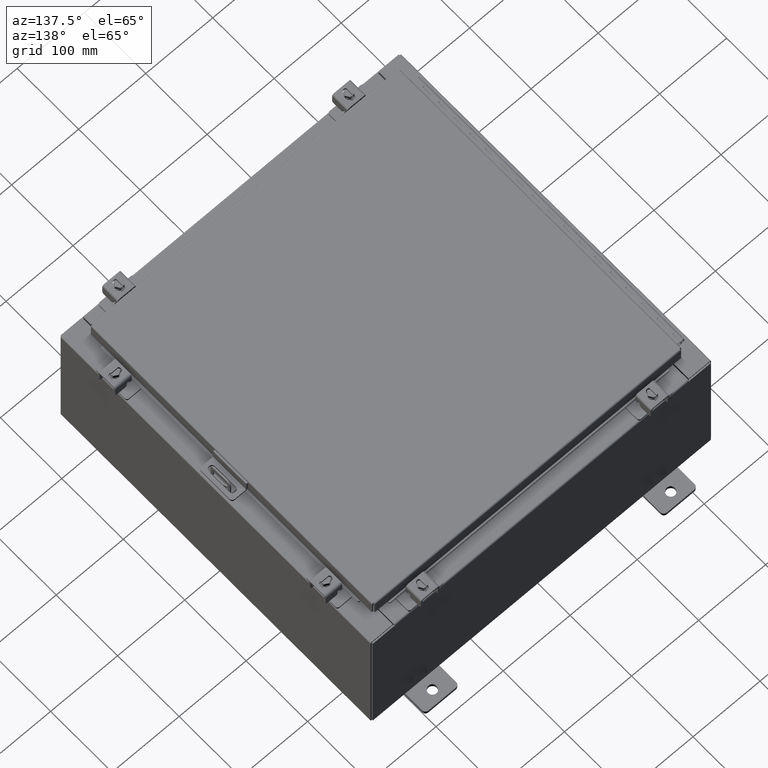
[diagram: clean part render]
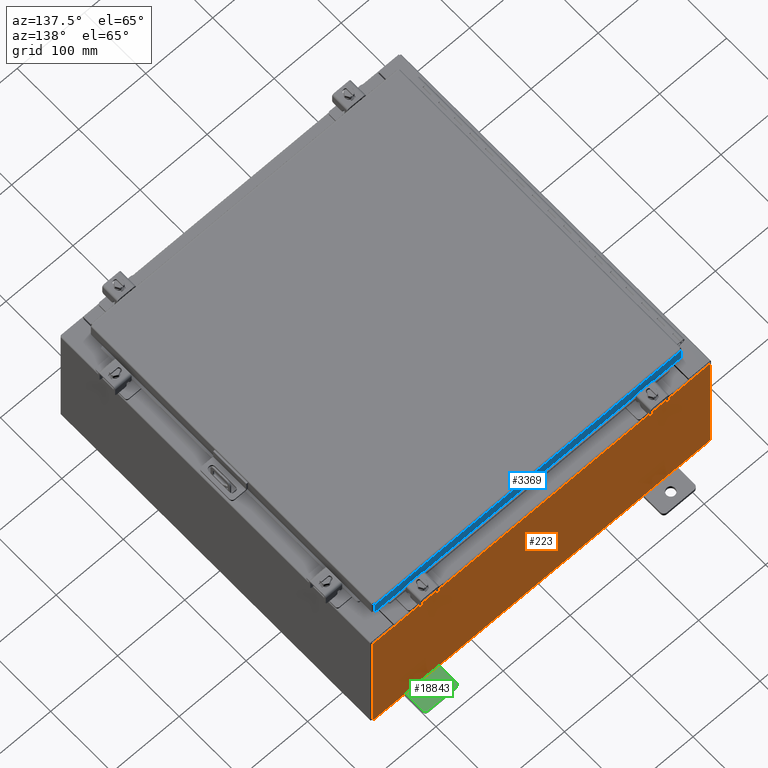
[diagram: same view with three faces highlighted in distinct colors, each labeled with its STEP entity id]
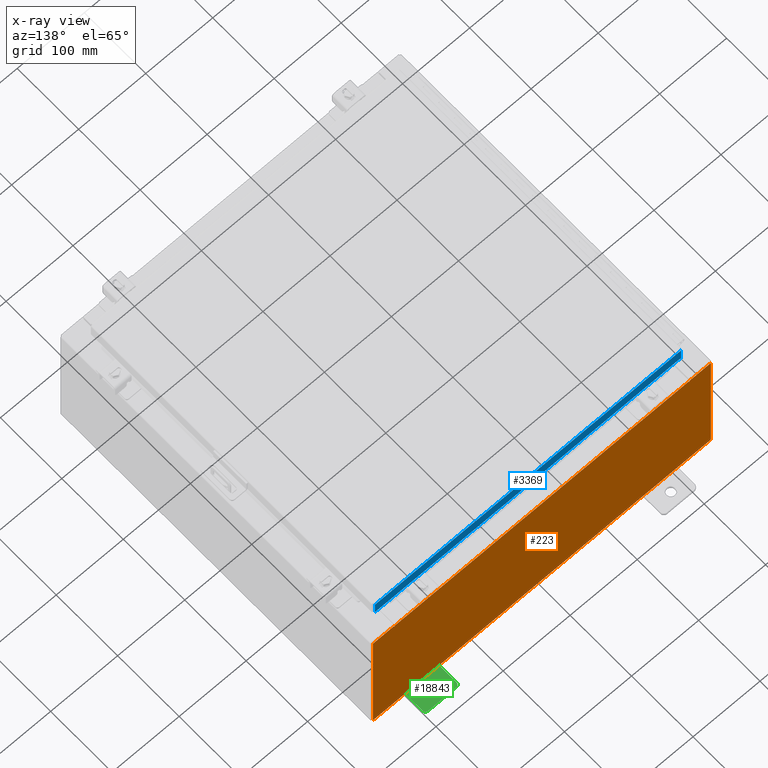
[diagram: x-ray of the same camera — body ghosted, the three highlighted faces saturated]
A machine part, auxiliary view with three faces highlighted in distinct colors.
The next image is the same camera in x-ray (body ghosted, the three faces saturated) — at least one of them is partly hidden behind the body in this view.
Their STEP definitions:

[orange] entity #223 — the highlighted planar face has unit normal (0, -1, 0).
#155 = VECTOR ( 'NONE', #18751, 39.37007874015748100 ) ;
#223 = ADVANCED_FACE ( 'NONE', ( #8480 ), #29188, .F. ) ;
#423 = ORIENTED_EDGE ( 'NONE', *, *, #13695, .T. ) ;
#445 = VECTOR ( 'NONE', #25773, 39.37007874015748100 ) ;
#549 = EDGE_LOOP ( 'NONE', ( #13789, #6925, #27679, #423, #16277, #18764, #25745, #837, #5865, #24125, #26299, #2747 ) ) ;
#837 = ORIENTED_EDGE ( 'NONE', *, *, #4699, .T. ) ;
#1571 = LINE ( 'NONE', #16478, #155 ) ;
#1827 = LINE ( 'NONE', #14611, #6461 ) ;
#2250 = LINE ( 'NONE', #15445, #8290 ) ;
#2747 = ORIENTED_EDGE ( 'NONE', *, *, #21229, .T. ) ;
#3086 = CARTESIAN_POINT ( 'NONE',  ( -8.637199999999996400, 1.024442997624098700E-016, 3.912299999999999700 ) ) ;
#3214 = VERTEX_POINT ( 'NONE', #3086 ) ;
#3218 = AXIS2_PLACEMENT_3D ( 'NONE', #13286, #21842, #14797 ) ;
#3475 = CARTESIAN_POINT ( 'NONE',  ( 8.637200000000000000, 0.0000000000000000000, 3.912299999999999700 ) ) ;
#4699 = EDGE_CURVE ( 'NONE', #22735, #11200, #25403, .T. ) ;
#4818 = CARTESIAN_POINT ( 'NONE',  ( 8.637200000000000000, 0.0000000000000000000, 3.874949999999999700 ) ) ;
#4938 = VERTEX_POINT ( 'NONE', #24771 ) ;
#5047 = DIRECTION ( 'NONE',  ( 0.0000000000000000000, 0.0000000000000000000, -1.000000000000000000 ) ) ;
#5865 = ORIENTED_EDGE ( 'NONE', *, *, #12851, .T. ) ;
#6461 = VECTOR ( 'NONE', #16879, 39.37007874015748100 ) ;
#6735 = VERTEX_POINT ( 'NONE', #8922 ) ;
#6899 = CARTESIAN_POINT ( 'NONE',  ( -8.655874999999996400, 0.0000000000000000000, 3.874949999999999700 ) ) ;
#6925 = ORIENTED_EDGE ( 'NONE', *, *, #14923, .F. ) ;
#7047 = AXIS2_PLACEMENT_3D ( 'NONE', #27223, #13625, #29522 ) ;
#7540 = VECTOR ( 'NONE', #18116, 39.37007874015748100 ) ;
#7727 = VECTOR ( 'NONE', #26538, 39.37007874015748100 ) ;
#8215 = LINE ( 'NONE', #13216, #14289 ) ;
#8239 = LINE ( 'NONE', #22707, #7540 ) ;
#8290 = VECTOR ( 'NONE', #20019, 39.37007874015748100 ) ;
#8480 = FACE_OUTER_BOUND ( 'NONE', #549, .T. ) ;
#8922 = CARTESIAN_POINT ( 'NONE',  ( -8.637199999999996400, -0.0000000000000000000, 3.874949999999999700 ) ) ;
#9011 = CIRCLE ( 'NONE', #22203, 0.01867500000000003900 ) ;
#9200 = DIRECTION ( 'NONE',  ( 0.0000000000000000000, 0.0000000000000000000, -1.000000000000000000 ) ) ;
#9842 = DIRECTION ( 'NONE',  ( 1.000000000000000000, 0.0000000000000000000, 0.0000000000000000000 ) ) ;
#10109 = EDGE_CURVE ( 'NONE', #12950, #24712, #18382, .T. ) ;
#10127 = CARTESIAN_POINT ( 'NONE',  ( 9.925300000000000000, 0.0000000000000000000, -3.925299999999999600 ) ) ;
#10326 = EDGE_CURVE ( 'NONE', #24257, #14989, #19440, .T. ) ;
#10653 = CARTESIAN_POINT ( 'NONE',  ( -9.925300000000000000, 0.0000000000000000000, -3.925299999999999600 ) ) ;
#11200 = VERTEX_POINT ( 'NONE', #19995 ) ;
#11536 = VECTOR ( 'NONE', #18460, 39.37007874015748100 ) ;
#12575 = LINE ( 'NONE', #23489, #445 ) ;
#12851 = EDGE_CURVE ( 'NONE', #11200, #12950, #1571, .T. ) ;
#12950 = VERTEX_POINT ( 'NONE', #10127 ) ;
#13216 = CARTESIAN_POINT ( 'NONE',  ( 8.637200000000000000, 0.0000000000000000000, 0.0000000000000000000 ) ) ;
#13286 = CARTESIAN_POINT ( 'NONE',  ( 0.0000000000000000000, 0.0000000000000000000, 0.0000000000000000000 ) ) ;
#13319 = VECTOR ( 'NONE', #9842, 39.37007874015748100 ) ;
#13343 = EDGE_CURVE ( 'NONE', #3214, #6735, #18282, .T. ) ;
#13625 = DIRECTION ( 'NONE',  ( -0.0000000000000000000, 1.000000000000000000, -0.0000000000000000000 ) ) ;
#13695 = EDGE_CURVE ( 'NONE', #3214, #22426, #2250, .T. ) ;
#13789 = ORIENTED_EDGE ( 'NONE', *, *, #19382, .F. ) ;
#14037 = EDGE_CURVE ( 'NONE', #22735, #24257, #12575, .T. ) ;
#14289 = VECTOR ( 'NONE', #24527, 39.37007874015748100 ) ;
#14611 = CARTESIAN_POINT ( 'NONE',  ( -9.925300000000000000, 0.0000000000000000000, 3.925299999999999600 ) ) ;
#14797 = DIRECTION ( 'NONE',  ( 0.0000000000000000000, -0.0000000000000000000, -1.000000000000000000 ) ) ;
#14923 = EDGE_CURVE ( 'NONE', #6735, #17699, #9011, .T. ) ;
#14989 = VERTEX_POINT ( 'NONE', #4818 ) ;
#15445 = CARTESIAN_POINT ( 'NONE',  ( -8.637200000000000000, 1.024442997624098700E-016, 3.912299999999999700 ) ) ;
#15923 = EDGE_CURVE ( 'NONE', #14989, #22426, #8215, .T. ) ;
#16277 = ORIENTED_EDGE ( 'NONE', *, *, #15923, .F. ) ;
#16478 = CARTESIAN_POINT ( 'NONE',  ( 9.925300000000000000, 0.0000000000000000000, 3.925299999999999600 ) ) ;
#16879 = DIRECTION ( 'NONE',  ( 1.000000000000000000, 0.0000000000000000000, 0.0000000000000000000 ) ) ;
#17560 = VECTOR ( 'NONE', #5047, 39.37007874015748100 ) ;
#17699 = VERTEX_POINT ( 'NONE', #25622 ) ;
#18116 = DIRECTION ( 'NONE',  ( -0.0000000000000000000, -0.0000000000000000000, 1.000000000000000000 ) ) ;
#18246 = CARTESIAN_POINT ( 'NONE',  ( 8.674550000000001800, 0.0000000000000000000, 3.925299999999999600 ) ) ;
#18282 = LINE ( 'NONE', #27702, #17560 ) ;
#18382 = LINE ( 'NONE', #10653, #7727 ) ;
#18460 = DIRECTION ( 'NONE',  ( 0.0000000000000000000, 0.0000000000000000000, 1.000000000000000000 ) ) ;
#18751 = DIRECTION ( 'NONE',  ( 0.0000000000000000000, 0.0000000000000000000, -1.000000000000000000 ) ) ;
#18764 = ORIENTED_EDGE ( 'NONE', *, *, #10326, .F. ) ;
#18772 = VERTEX_POINT ( 'NONE', #27647 ) ;
#18868 = CARTESIAN_POINT ( 'NONE',  ( -9.925300000000000000, 0.0000000000000000000, 3.925299999999999600 ) ) ;
#19382 = EDGE_CURVE ( 'NONE', #17699, #4938, #22890, .T. ) ;
#19440 = CIRCLE ( 'NONE', #7047, 0.01867500000000003900 ) ;
#19995 = CARTESIAN_POINT ( 'NONE',  ( 9.925300000000000000, 0.0000000000000000000, 3.925299999999999600 ) ) ;
#20019 = DIRECTION ( 'NONE',  ( 1.000000000000000000, 0.0000000000000000000, 0.0000000000000000000 ) ) ;
#20663 = CARTESIAN_POINT ( 'NONE',  ( -8.674549999999996400, -0.0000000000000000000, 0.0000000000000000000 ) ) ;
#21229 = EDGE_CURVE ( 'NONE', #18772, #4938, #1827, .T. ) ;
#21446 = CARTESIAN_POINT ( 'NONE',  ( 8.674550000000000000, 0.0000000000000000000, 3.874949999999999700 ) ) ;
#21842 = DIRECTION ( 'NONE',  ( 0.0000000000000000000, -1.000000000000000000, 0.0000000000000000000 ) ) ;
#22203 = AXIS2_PLACEMENT_3D ( 'NONE', #6899, #22805, #9200 ) ;
#22426 = VERTEX_POINT ( 'NONE', #3475 ) ;
#22707 = CARTESIAN_POINT ( 'NONE',  ( -9.925300000000000000, 0.0000000000000000000, 3.925299999999999600 ) ) ;
#22735 = VERTEX_POINT ( 'NONE', #18246 ) ;
#22805 = DIRECTION ( 'NONE',  ( -0.0000000000000000000, 1.000000000000000000, -0.0000000000000000000 ) ) ;
#22890 = LINE ( 'NONE', #20663, #11536 ) ;
#23489 = CARTESIAN_POINT ( 'NONE',  ( 8.674549999999747700, -0.0000000000000000000, -5.647877341832665300E-013 ) ) ;
#24125 = ORIENTED_EDGE ( 'NONE', *, *, #10109, .T. ) ;
#24257 = VERTEX_POINT ( 'NONE', #21446 ) ;
#24527 = DIRECTION ( 'NONE',  ( 0.0000000000000000000, 0.0000000000000000000, 1.000000000000000000 ) ) ;
#24712 = VERTEX_POINT ( 'NONE', #27572 ) ;
#24771 = CARTESIAN_POINT ( 'NONE',  ( -8.674549999999996400, 0.0000000000000000000, 3.925299999999999600 ) ) ;
#25403 = LINE ( 'NONE', #18868, #13319 ) ;
#25622 = CARTESIAN_POINT ( 'NONE',  ( -8.674549999999996400, 0.0000000000000000000, 3.874949999999999700 ) ) ;
#25745 = ORIENTED_EDGE ( 'NONE', *, *, #14037, .F. ) ;
#25773 = DIRECTION ( 'NONE',  ( -6.510859170600007400E-014, 0.0000000000000000000, -1.000000000000000000 ) ) ;
#26299 = ORIENTED_EDGE ( 'NONE', *, *, #27411, .T. ) ;
#26538 = DIRECTION ( 'NONE',  ( -1.000000000000000000, -0.0000000000000000000, -0.0000000000000000000 ) ) ;
#27223 = CARTESIAN_POINT ( 'NONE',  ( 8.655875000000000000, 0.0000000000000000000, 3.874949999999999700 ) ) ;
#27411 = EDGE_CURVE ( 'NONE', #24712, #18772, #8239, .T. ) ;
#27572 = CARTESIAN_POINT ( 'NONE',  ( -9.925300000000000000, 0.0000000000000000000, -3.925299999999999600 ) ) ;
#27647 = CARTESIAN_POINT ( 'NONE',  ( -9.925300000000000000, 0.0000000000000000000, 3.925299999999999600 ) ) ;
#27679 = ORIENTED_EDGE ( 'NONE', *, *, #13343, .F. ) ;
#27702 = CARTESIAN_POINT ( 'NONE',  ( -8.637199999999996400, -0.0000000000000000000, 0.0000000000000000000 ) ) ;
#29188 = PLANE ( 'NONE',  #3218 ) ;
#29522 = DIRECTION ( 'NONE',  ( 0.0000000000000000000, 0.0000000000000000000, -1.000000000000000000 ) ) ;

[blue] entity #3369 — the highlighted planar face has unit normal (0, -1, -0).
#1258 = VERTEX_POINT ( 'NONE', #7586 ) ;
#1650 = CARTESIAN_POINT ( 'NONE',  ( -9.077999999999999400, 9.094000000000001200, -0.8500000000000019800 ) ) ;
#2238 = EDGE_CURVE ( 'NONE', #18423, #15347, #7365, .T. ) ;
#3369 = ADVANCED_FACE ( 'NONE', ( #15116 ), #18319, .F. ) ;
#3679 = EDGE_CURVE ( 'NONE', #1258, #11856, #15463, .T. ) ;
#3846 = DIRECTION ( 'NONE',  ( 1.000000000000000000, -4.379057701015054300E-047, 1.278955053213606700E-016 ) ) ;
#4722 = CARTESIAN_POINT ( 'NONE',  ( -3.278588910595573600E-030, 9.093999999999999400, 2.589571694958335100E-014 ) ) ;
#6264 = CARTESIAN_POINT ( 'NONE',  ( -8.239157864376265300, 9.093999999999995900, -0.8500000000000029800 ) ) ;
#7002 = DIRECTION ( 'NONE',  ( 0.0000000000000000000, 2.818880942772351900E-015, -1.000000000000000000 ) ) ;
#7365 = LINE ( 'NONE', #1650, #25507 ) ;
#7375 = CARTESIAN_POINT ( 'NONE',  ( -8.239157864376267100, 9.093999999999995900, -0.8500000000000029800 ) ) ;
#7473 = DIRECTION ( 'NONE',  ( 1.000000000000000000, -0.0000000000000000000, -0.0000000000000000000 ) ) ;
#7586 = CARTESIAN_POINT ( 'NONE',  ( 8.989157864376267100, 9.093999999999999400, -0.08770000000000007000 ) ) ;
#7820 = DIRECTION ( 'NONE',  ( -1.000000000000000000, -3.605222026166234800E-031, -9.826997386333231700E-046 ) ) ;
#8387 = CARTESIAN_POINT ( 'NONE',  ( -9.077999999999999400, 9.094000000000001200, -0.8500000000000019800 ) ) ;
#8860 = ORIENTED_EDGE ( 'NONE', *, *, #19776, .F. ) ;
#9108 = DIRECTION ( 'NONE',  ( -0.0000000000000000000, 2.818880942772351900E-015, -1.000000000000000000 ) ) ;
#9603 = EDGE_LOOP ( 'NONE', ( #10993, #22389, #8860, #12619, #16540, #18942 ) ) ;
#9854 = EDGE_CURVE ( 'NONE', #15347, #19843, #18036, .T. ) ;
#9911 = VERTEX_POINT ( 'NONE', #28068 ) ;
#10993 = ORIENTED_EDGE ( 'NONE', *, *, #19577, .F. ) ;
#11856 = VERTEX_POINT ( 'NONE', #17955 ) ;
#11877 = VECTOR ( 'NONE', #7820, 39.37007874015748100 ) ;
#12030 = VECTOR ( 'NONE', #7473, 39.37007874015748100 ) ;
#12563 = DIRECTION ( 'NONE',  ( 0.0000000000000000000, 2.818880942772351900E-015, -1.000000000000000000 ) ) ;
#12619 = ORIENTED_EDGE ( 'NONE', *, *, #9854, .F. ) ;
#12901 = LINE ( 'NONE', #8387, #24261 ) ;
#13222 = EDGE_CURVE ( 'NONE', #9911, #18423, #26474, .T. ) ;
#14042 = VECTOR ( 'NONE', #12563, 39.37007874015748100 ) ;
#14854 = CARTESIAN_POINT ( 'NONE',  ( 8.989157864376267100, 9.093999999999999400, 2.589571694958335100E-014 ) ) ;
#15036 = CARTESIAN_POINT ( 'NONE',  ( -8.989157864376267100, 9.094000000000001200, -0.8500000000000019800 ) ) ;
#15116 = FACE_OUTER_BOUND ( 'NONE', #9603, .T. ) ;
#15347 = VERTEX_POINT ( 'NONE', #6264 ) ;
#15463 = LINE ( 'NONE', #14854, #14042 ) ;
#16540 = ORIENTED_EDGE ( 'NONE', *, *, #2238, .F. ) ;
#17879 = LINE ( 'NONE', #21449, #11877 ) ;
#17955 = CARTESIAN_POINT ( 'NONE',  ( 8.989157864376267100, 9.094000000000001200, -0.8499999999999996400 ) ) ;
#18036 = LINE ( 'NONE', #7375, #12030 ) ;
#18319 = PLANE ( 'NONE',  #26909 ) ;
#18423 = VERTEX_POINT ( 'NONE', #15036 ) ;
#18942 = ORIENTED_EDGE ( 'NONE', *, *, #13222, .F. ) ;
#19577 = EDGE_CURVE ( 'NONE', #1258, #9911, #17879, .T. ) ;
#19776 = EDGE_CURVE ( 'NONE', #19843, #11856, #12901, .T. ) ;
#19843 = VERTEX_POINT ( 'NONE', #28979 ) ;
#19867 = DIRECTION ( 'NONE',  ( 1.000000000000000000, -4.379057701015054300E-047, 1.278955053213606700E-016 ) ) ;
#20433 = VECTOR ( 'NONE', #9108, 39.37007874015748100 ) ;
#20630 = DIRECTION ( 'NONE',  ( 3.605222026166233900E-031, -1.000000000000000000, -2.818880942772351900E-015 ) ) ;
#21449 = CARTESIAN_POINT ( 'NONE',  ( -9.077999999999999400, 9.093999999999999400, -0.08770000000000007000 ) ) ;
#22389 = ORIENTED_EDGE ( 'NONE', *, *, #3679, .T. ) ;
#24261 = VECTOR ( 'NONE', #3846, 39.37007874015748100 ) ;
#25507 = VECTOR ( 'NONE', #19867, 39.37007874015748100 ) ;
#26474 = LINE ( 'NONE', #29478, #20433 ) ;
#26909 = AXIS2_PLACEMENT_3D ( 'NONE', #4722, #20630, #7002 ) ;
#28068 = CARTESIAN_POINT ( 'NONE',  ( -8.989157864376267100, 9.093999999999999400, -0.08770000000000007000 ) ) ;
#28979 = CARTESIAN_POINT ( 'NONE',  ( 8.239157864376267100, 9.093999999999995900, -0.8500000000000029800 ) ) ;
#29478 = CARTESIAN_POINT ( 'NONE',  ( -8.989157864376267100, 9.093999999999999400, -0.07469999999999978000 ) ) ;

[green] entity #18843 — the highlighted planar face has unit normal (0, 0, 1).
#98 = DIRECTION ( 'NONE',  ( -5.163192708025533800E-017, 0.0000000000000000000, -1.000000000000000000 ) ) ;
#104 = AXIS2_PLACEMENT_3D ( 'NONE', #21946, #8309, #24214 ) ;
#131 = FACE_OUTER_BOUND ( 'NONE', #20746, .T. ) ;
#209 = EDGE_CURVE ( 'NONE', #20907, #4468, #26635, .T. ) ;
#451 = VECTOR ( 'NONE', #26688, 39.37007874015748100 ) ;
#476 = VECTOR ( 'NONE', #1355, 39.37007874015748100 ) ;
#671 = AXIS2_PLACEMENT_3D ( 'NONE', #4878, #20784, #7161 ) ;
#920 = VERTEX_POINT ( 'NONE', #2030 ) ;
#976 = ORIENTED_EDGE ( 'NONE', *, *, #13792, .T. ) ;
#1216 = CIRCLE ( 'NONE', #18936, 0.2499999999999999200 ) ;
#1232 = DIRECTION ( 'NONE',  ( 0.0000000000000000000, -1.639108796198553600E-015, -1.000000000000000000 ) ) ;
#1355 = DIRECTION ( 'NONE',  ( 0.0000000000000000000, -1.000000000000000000, 1.639108796198558100E-015 ) ) ;
#1356 = VECTOR ( 'NONE', #20258, 39.37007874015748100 ) ;
#1954 = CARTESIAN_POINT ( 'NONE',  ( 0.0000000000000000000, 1.059999999999993400, -1.000000000000010000 ) ) ;
#2030 = CARTESIAN_POINT ( 'NONE',  ( 4.168508244714285900E-016, 0.6249999999999992200, 0.2499999999999999200 ) ) ;
#2209 = DIRECTION ( 'NONE',  ( 1.000000000000000000, 0.0000000000000000000, -0.0000000000000000000 ) ) ;
#3076 = CIRCLE ( 'NONE', #12192, 0.1900000000000011100 ) ;
#3341 = VECTOR ( 'NONE', #1232, 39.37007874015748100 ) ;
#3477 = EDGE_LOOP ( 'NONE', ( #4289, #27359 ) ) ;
#3552 = DIRECTION ( 'NONE',  ( 1.000000000000000000, -0.0000000000000000000, -5.163192708025532000E-017 ) ) ;
#4289 = ORIENTED_EDGE ( 'NONE', *, *, #4974, .F. ) ;
#4468 = VERTEX_POINT ( 'NONE', #15703 ) ;
#4542 = CARTESIAN_POINT ( 'NONE',  ( 0.0000000000000000000, -1.250000000000005300, -0.8100000000000047200 ) ) ;
#4878 = CARTESIAN_POINT ( 'NONE',  ( 0.0000000000000000000, -1.060000000000004100, -0.8100000000000050500 ) ) ;
#4960 = DIRECTION ( 'NONE',  ( -1.000000000000000000, 6.523827964459549700E-016, 5.163192708025532000E-017 ) ) ;
#4974 = EDGE_CURVE ( 'NONE', #14574, #920, #1216, .T. ) ;
#5079 = DIRECTION ( 'NONE',  ( 1.000000000000000000, 0.0000000000000000000, -0.0000000000000000000 ) ) ;
#5346 = CIRCLE ( 'NONE', #104, 0.1900000000000011400 ) ;
#5502 = FACE_BOUND ( 'NONE', #3477, .T. ) ;
#5905 = EDGE_CURVE ( 'NONE', #20574, #13015, #20774, .T. ) ;
#7004 = VERTEX_POINT ( 'NONE', #12202 ) ;
#7161 = DIRECTION ( 'NONE',  ( 0.0000000000000000000, 0.0000000000000000000, -1.000000000000000000 ) ) ;
#7353 = CIRCLE ( 'NONE', #15384, 0.2499999999999999200 ) ;
#7500 = EDGE_CURVE ( 'NONE', #4468, #9912, #20685, .T. ) ;
#7606 = CARTESIAN_POINT ( 'NONE',  ( 0.0000000000000000000, -1.060000000000003400, -0.4400000000000005000 ) ) ;
#7886 = AXIS2_PLACEMENT_3D ( 'NONE', #7606, #23518, #9924 ) ;
#7889 = ORIENTED_EDGE ( 'NONE', *, *, #7500, .T. ) ;
#8161 = DIRECTION ( 'NONE',  ( 1.000000000000000000, 0.0000000000000000000, -0.0000000000000000000 ) ) ;
#8309 = DIRECTION ( 'NONE',  ( 1.000000000000000000, 0.0000000000000000000, -0.0000000000000000000 ) ) ;
#8933 = CARTESIAN_POINT ( 'NONE',  ( 0.0000000000000000000, -1.250000000000005600, -1.000000000000006200 ) ) ;
#8962 = CARTESIAN_POINT ( 'NONE',  ( 0.0000000000000000000, 1.059999999999996500, 0.9999999999999953400 ) ) ;
#9025 = AXIS2_PLACEMENT_3D ( 'NONE', #27847, #12063, #27951 ) ;
#9573 = ORIENTED_EDGE ( 'NONE', *, *, #22485, .T. ) ;
#9912 = VERTEX_POINT ( 'NONE', #25769 ) ;
#9924 = DIRECTION ( 'NONE',  ( 0.0000000000000000000, 0.0000000000000000000, -1.000000000000000000 ) ) ;
#10162 = CIRCLE ( 'NONE', #7886, 0.1900000000000011100 ) ;
#10320 = CARTESIAN_POINT ( 'NONE',  ( 0.0000000000000000000, -1.250000000000003100, 0.4400000000000020000 ) ) ;
#10358 = CARTESIAN_POINT ( 'NONE',  ( 0.0000000000000000000, -1.250000000000002200, 0.9999999999999992200 ) ) ;
#10529 = CARTESIAN_POINT ( 'NONE',  ( 6.829619984160658000E-017, -1.250000000000003800, 0.2500000000000005000 ) ) ;
#10860 = LINE ( 'NONE', #10358, #16206 ) ;
#10999 = VERTEX_POINT ( 'NONE', #12562 ) ;
#11514 = VECTOR ( 'NONE', #13941, 39.37007874015748100 ) ;
#12063 = DIRECTION ( 'NONE',  ( 1.000000000000000000, 0.0000000000000000000, -0.0000000000000000000 ) ) ;
#12192 = AXIS2_PLACEMENT_3D ( 'NONE', #21794, #8161, #24054 ) ;
#12202 = CARTESIAN_POINT ( 'NONE',  ( 0.0000000000000000000, 1.249999999999994700, -0.8100000000000092700 ) ) ;
#12222 = EDGE_CURVE ( 'NONE', #15998, #7004, #25832, .T. ) ;
#12562 = CARTESIAN_POINT ( 'NONE',  ( 1.928684683526964400E-016, -1.060000000000003400, -0.2499999999999994400 ) ) ;
#12580 = LINE ( 'NONE', #13176, #451 ) ;
#12597 = LINE ( 'NONE', #24033, #476 ) ;
#12892 = EDGE_CURVE ( 'NONE', #10999, #28236, #10162, .T. ) ;
#13015 = VERTEX_POINT ( 'NONE', #10320 ) ;
#13176 = CARTESIAN_POINT ( 'NONE',  ( 4.780733988912460100E-016, -0.6249999999999993300, -0.2499999999999993900 ) ) ;
#13218 = ORIENTED_EDGE ( 'NONE', *, *, #12222, .T. ) ;
#13753 = DIRECTION ( 'NONE',  ( 1.000000000000000000, -0.0000000000000000000, -5.163192708025532000E-017 ) ) ;
#13792 = EDGE_CURVE ( 'NONE', #16976, #15499, #18974, .T. ) ;
#13852 = CARTESIAN_POINT ( 'NONE',  ( 0.0000000000000000000, -1.250000000000002400, 0.8099999999999980500 ) ) ;
#13941 = DIRECTION ( 'NONE',  ( 0.0000000000000000000, 1.639108796198553600E-015, 1.000000000000000000 ) ) ;
#14305 = ORIENTED_EDGE ( 'NONE', *, *, #14786, .T. ) ;
#14566 = VECTOR ( 'NONE', #28787, 39.37007874015748100 ) ;
#14574 = VERTEX_POINT ( 'NONE', #22855 ) ;
#14786 = EDGE_CURVE ( 'NONE', #9912, #10999, #12580, .T. ) ;
#14888 = CARTESIAN_POINT ( 'NONE',  ( 0.0000000000000000000, -1.250000000000002200, 0.9999999999999992200 ) ) ;
#15384 = AXIS2_PLACEMENT_3D ( 'NONE', #17154, #3552, #19434 ) ;
#15499 = VERTEX_POINT ( 'NONE', #8962 ) ;
#15607 = EDGE_CURVE ( 'NONE', #21666, #23760, #21427, .T. ) ;
#15703 = CARTESIAN_POINT ( 'NONE',  ( 0.0000000000000000000, -0.6249999999999992200, 0.2500000000000005000 ) ) ;
#15849 = CARTESIAN_POINT ( 'NONE',  ( 0.0000000000000000000, 1.059999999999996300, 0.8099999999999938400 ) ) ;
#15998 = VERTEX_POINT ( 'NONE', #1954 ) ;
#16206 = VECTOR ( 'NONE', #28521, 39.37007874015748100 ) ;
#16343 = AXIS2_PLACEMENT_3D ( 'NONE', #18562, #4960, #20856 ) ;
#16854 = AXIS2_PLACEMENT_3D ( 'NONE', #15849, #2209, #18107 ) ;
#16900 = CARTESIAN_POINT ( 'NONE',  ( 0.0000000000000000000, -1.250000000000004700, -0.4400000000000002200 ) ) ;
#16976 = VERTEX_POINT ( 'NONE', #24254 ) ;
#16982 = CARTESIAN_POINT ( 'NONE',  ( 0.0000000000000000000, -1.060000000000004500, -1.000000000000006400 ) ) ;
#17024 = ORIENTED_EDGE ( 'NONE', *, *, #5905, .T. ) ;
#17154 = CARTESIAN_POINT ( 'NONE',  ( 4.039428427013647300E-016, 0.6249999999999992200, -9.783840404509077400E-018 ) ) ;
#17473 = EDGE_CURVE ( 'NONE', #23760, #15998, #24860, .T. ) ;
#17513 = LINE ( 'NONE', #22977, #11514 ) ;
#18107 = DIRECTION ( 'NONE',  ( 0.0000000000000000000, 0.0000000000000000000, -1.000000000000000000 ) ) ;
#18562 = CARTESIAN_POINT ( 'NONE',  ( 4.780733988912460100E-016, -0.6249999999999993300, 5.858939755051854500E-017 ) ) ;
#18687 = CARTESIAN_POINT ( 'NONE',  ( 0.0000000000000000000, 1.059999999999993600, -0.8100000000000089400 ) ) ;
#18843 = ADVANCED_FACE ( 'NONE', ( #5502, #131 ), #23374, .T. ) ;
#18936 = AXIS2_PLACEMENT_3D ( 'NONE', #27369, #13753, #98 ) ;
#18974 = CIRCLE ( 'NONE', #16854, 0.1900000000000011100 ) ;
#19026 = EDGE_CURVE ( 'NONE', #15499, #20795, #12597, .T. ) ;
#19188 = ORIENTED_EDGE ( 'NONE', *, *, #209, .T. ) ;
#19434 = DIRECTION ( 'NONE',  ( -5.163192708025533800E-017, 0.0000000000000000000, -1.000000000000000000 ) ) ;
#19866 = CARTESIAN_POINT ( 'NONE',  ( 1.928684683526972300E-016, -1.060000000000002100, 0.2500000000000005000 ) ) ;
#20258 = DIRECTION ( 'NONE',  ( 0.0000000000000000000, 1.000000000000000000, -1.639108796198558100E-015 ) ) ;
#20574 = VERTEX_POINT ( 'NONE', #13852 ) ;
#20577 = EDGE_CURVE ( 'NONE', #7004, #16976, #17513, .T. ) ;
#20685 = CIRCLE ( 'NONE', #16343, 0.2499999999999999200 ) ;
#20746 = EDGE_LOOP ( 'NONE', ( #29480, #21213, #17024, #9573, #19188, #7889, #14305, #27091, #28611, #25797, #24715, #13218, #28417, #976 ) ) ;
#20774 = LINE ( 'NONE', #14888, #3341 ) ;
#20784 = DIRECTION ( 'NONE',  ( 1.000000000000000000, 0.0000000000000000000, -0.0000000000000000000 ) ) ;
#20795 = VERTEX_POINT ( 'NONE', #23761 ) ;
#20856 = DIRECTION ( 'NONE',  ( -6.523827964459551700E-016, -1.000000000000000000, 0.0000000000000000000 ) ) ;
#20907 = VERTEX_POINT ( 'NONE', #19866 ) ;
#20990 = DIRECTION ( 'NONE',  ( 0.0000000000000000000, 0.0000000000000000000, -1.000000000000000000 ) ) ;
#21213 = ORIENTED_EDGE ( 'NONE', *, *, #24983, .T. ) ;
#21427 = CIRCLE ( 'NONE', #671, 0.1900000000000011100 ) ;
#21666 = VERTEX_POINT ( 'NONE', #4542 ) ;
#21774 = AXIS2_PLACEMENT_3D ( 'NONE', #18687, #5079, #20990 ) ;
#21794 = CARTESIAN_POINT ( 'NONE',  ( 0.0000000000000000000, -1.060000000000001600, 0.8099999999999978300 ) ) ;
#21946 = CARTESIAN_POINT ( 'NONE',  ( 0.0000000000000000000, -1.060000000000002100, 0.4400000000000016700 ) ) ;
#22485 = EDGE_CURVE ( 'NONE', #13015, #20907, #5346, .T. ) ;
#22855 = CARTESIAN_POINT ( 'NONE',  ( 3.910348609313009100E-016, 0.6249999999999992200, -0.2499999999999999200 ) ) ;
#22977 = CARTESIAN_POINT ( 'NONE',  ( 0.0000000000000000000, 1.249999999999994200, -1.000000000000010400 ) ) ;
#23374 = PLANE ( 'NONE',  #9025 ) ;
#23518 = DIRECTION ( 'NONE',  ( 1.000000000000000000, 0.0000000000000000000, -0.0000000000000000000 ) ) ;
#23760 = VERTEX_POINT ( 'NONE', #16982 ) ;
#23761 = CARTESIAN_POINT ( 'NONE',  ( 0.0000000000000000000, -1.060000000000001200, 0.9999999999999988900 ) ) ;
#24033 = CARTESIAN_POINT ( 'NONE',  ( 0.0000000000000000000, 1.249999999999997600, 0.9999999999999951200 ) ) ;
#24054 = DIRECTION ( 'NONE',  ( 0.0000000000000000000, 0.0000000000000000000, -1.000000000000000000 ) ) ;
#24214 = DIRECTION ( 'NONE',  ( 0.0000000000000000000, 0.0000000000000000000, -1.000000000000000000 ) ) ;
#24254 = CARTESIAN_POINT ( 'NONE',  ( 0.0000000000000000000, 1.249999999999997300, 0.8099999999999935000 ) ) ;
#24329 = EDGE_CURVE ( 'NONE', #920, #14574, #7353, .T. ) ;
#24715 = ORIENTED_EDGE ( 'NONE', *, *, #17473, .T. ) ;
#24860 = LINE ( 'NONE', #8933, #1356 ) ;
#24983 = EDGE_CURVE ( 'NONE', #20795, #20574, #3076, .T. ) ;
#25595 = EDGE_CURVE ( 'NONE', #28236, #21666, #10860, .T. ) ;
#25769 = CARTESIAN_POINT ( 'NONE',  ( 4.780733988912460100E-016, -0.6249999999999993300, -0.2499999999999998600 ) ) ;
#25797 = ORIENTED_EDGE ( 'NONE', *, *, #15607, .T. ) ;
#25832 = CIRCLE ( 'NONE', #21774, 0.1900000000000011100 ) ;
#26635 = LINE ( 'NONE', #10529, #14566 ) ;
#26688 = DIRECTION ( 'NONE',  ( -6.556435184794182400E-016, -1.000000000000000000, -1.639108796198545600E-016 ) ) ;
#27091 = ORIENTED_EDGE ( 'NONE', *, *, #12892, .T. ) ;
#27359 = ORIENTED_EDGE ( 'NONE', *, *, #24329, .F. ) ;
#27369 = CARTESIAN_POINT ( 'NONE',  ( 4.039428427013647300E-016, 0.6249999999999992200, -9.783840404509077400E-018 ) ) ;
#27847 = CARTESIAN_POINT ( 'NONE',  ( 0.0000000000000000000, 0.0000000000000000000, 0.0000000000000000000 ) ) ;
#27951 = DIRECTION ( 'NONE',  ( -0.0000000000000000000, 0.0000000000000000000, -1.000000000000000000 ) ) ;
#28236 = VERTEX_POINT ( 'NONE', #16900 ) ;
#28417 = ORIENTED_EDGE ( 'NONE', *, *, #20577, .T. ) ;
#28521 = DIRECTION ( 'NONE',  ( 0.0000000000000000000, -1.639108796198553600E-015, -1.000000000000000000 ) ) ;
#28611 = ORIENTED_EDGE ( 'NONE', *, *, #25595, .T. ) ;
#28787 = DIRECTION ( 'NONE',  ( 6.556435184794182400E-016, 1.000000000000000000, 0.0000000000000000000 ) ) ;
#29480 = ORIENTED_EDGE ( 'NONE', *, *, #19026, .T. ) ;